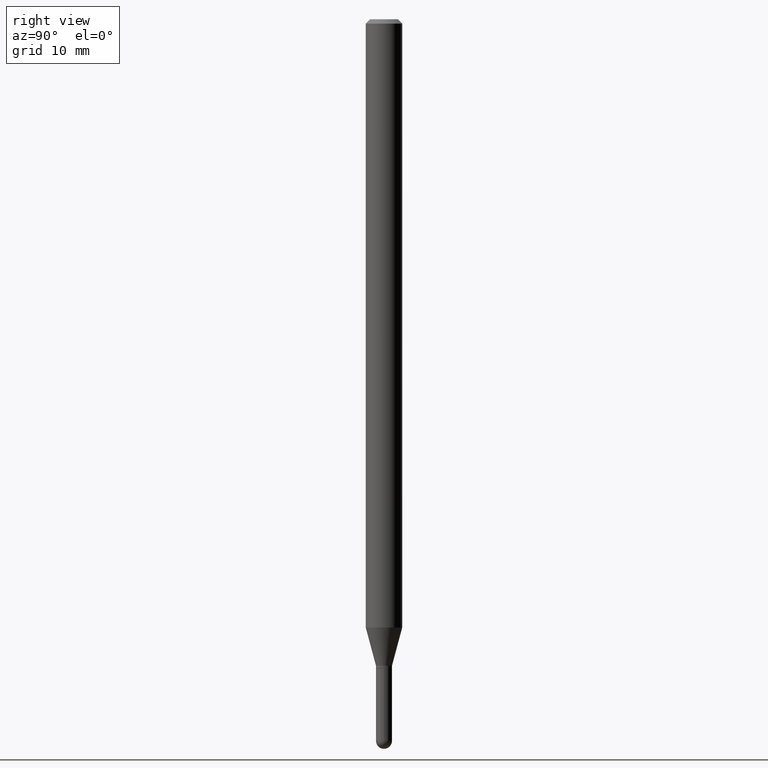
[diagram: clean part render]
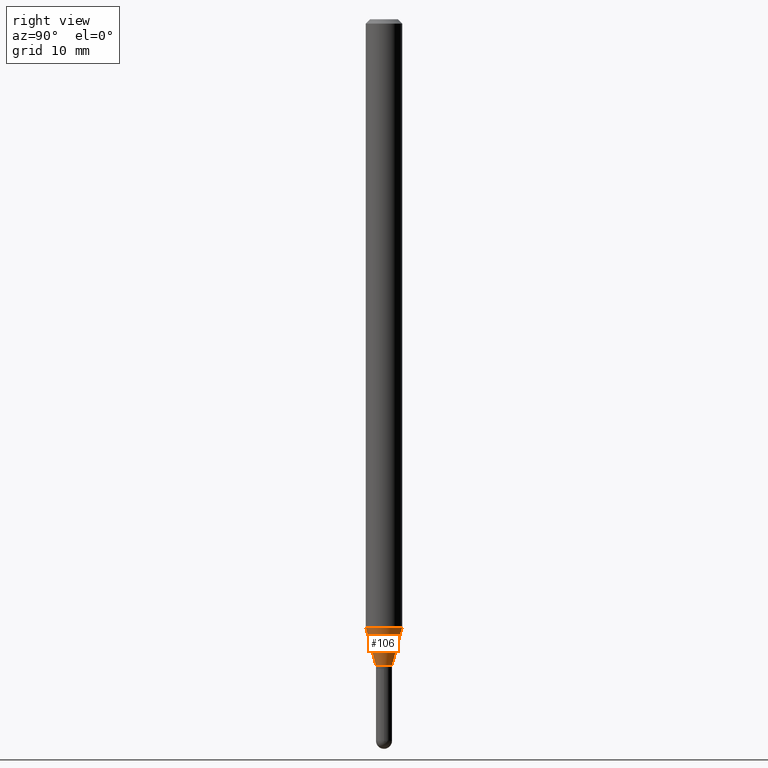
[diagram: same view with one face highlighted and labeled with its STEP entity id]
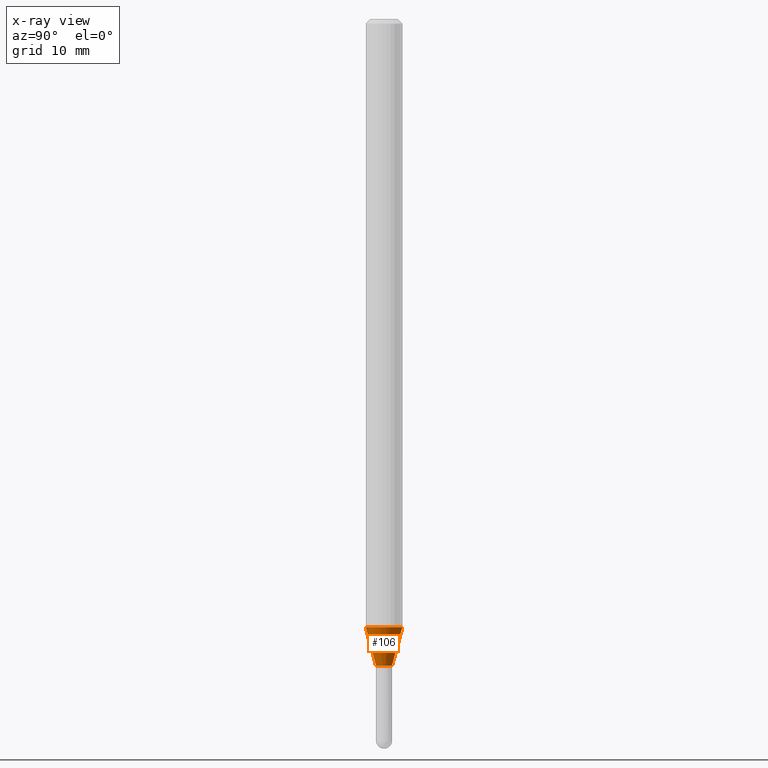
[diagram: x-ray of the same camera — body ghosted, the highlighted face saturated]
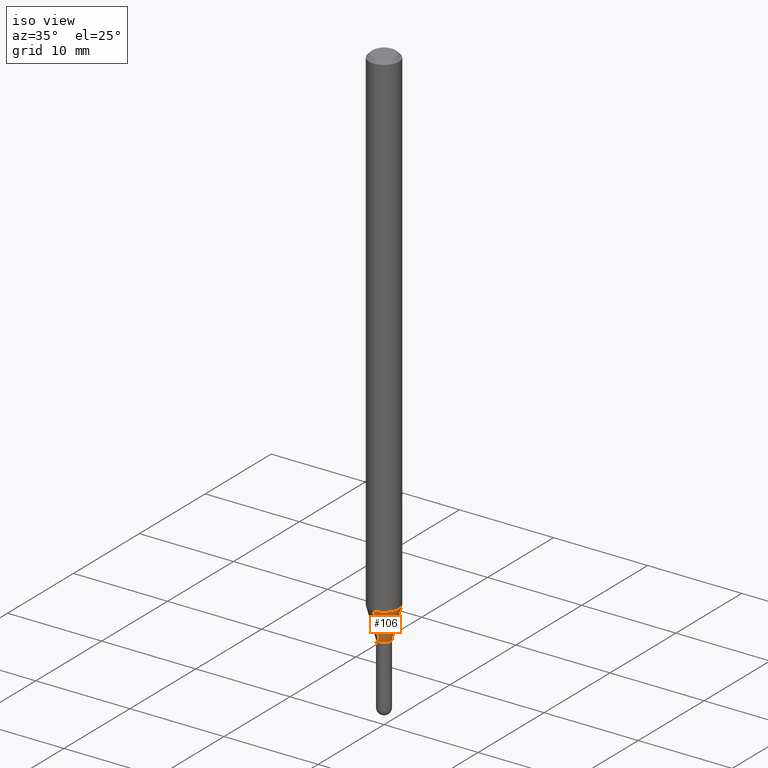
[diagram: same view with one face highlighted and labeled with its STEP entity id]
A machine part, right view. The second image highlights one B-rep face of the part: STEP entity #106.
The next image is the same camera in x-ray: the body ghosted, the highlighted face saturated — about 0% of this face is hidden behind the body in this view.
A second angle (iso view) of the same face is appended — the face is thin or edge-on in the first view.
In plain terms, the highlighted conical surface has half-angle 15 deg.
Its self-contained STEP definition (entity closure, byte-faithful):
#19 = VERTEX_POINT ( 'NONE', #500 ) ;
#24 = VERTEX_POINT ( 'NONE', #426 ) ;
#49 = CARTESIAN_POINT ( 'NONE',  ( -1.920314736363195647E-16, -0.02750000000000793476, -2.215000000000000302 ) ) ;
#64 = CARTESIAN_POINT ( 'NONE',  ( 5.416780979827812777E-29, -7.733534395540570938E-15, -2.215000000000000302 ) ) ;
#73 = VERTEX_POINT ( 'NONE', #75 ) ;
#75 = CARTESIAN_POINT ( 'NONE',  ( 3.197442310920983692E-16, 0.02749999999999246797, -2.215000000000000302 ) ) ;
#106 = ADVANCED_FACE ( 'NONE', ( #179 ), #345, .T. ) ;
#110 = VECTOR ( 'NONE', #121, 39.37007874015748854 ) ;
#117 = DIRECTION ( 'NONE',  ( -6.982962677686265922E-15, -1.000000000000000000, 0.000000000000000000 ) ) ;
#119 = CARTESIAN_POINT ( 'NONE',  ( 5.097345510727747857E-29, -7.277476600949894136E-15, -2.084378221735090797 ) ) ;
#121 = DIRECTION ( 'NONE',  ( -1.807323732225331717E-15, -0.2588190451025184080, 0.9659258262890689783 ) ) ;
#179 = FACE_OUTER_BOUND ( 'NONE', #208, .T. ) ;
#192 = CARTESIAN_POINT ( 'NONE',  ( -1.920314736363195647E-16, -0.02750000000000793476, -2.215000000000000302 ) ) ;
#200 = DIRECTION ( 'NONE',  ( 1.839019923739601893E-15, 0.2588190451025252359, 0.9659258262890670910 ) ) ;
#206 = EDGE_CURVE ( 'NONE', #73, #19, #361, .T. ) ;
#208 = EDGE_LOOP ( 'NONE', ( #332, #221, #218, #330 ) ) ;
#218 = ORIENTED_EDGE ( 'NONE', *, *, #495, .F. ) ;
#221 = ORIENTED_EDGE ( 'NONE', *, *, #206, .T. ) ;
#235 = EDGE_CURVE ( 'NONE', #248, #24, #368, .T. ) ;
#237 = DIRECTION ( 'NONE',  ( -2.445499313692014711E-29, 3.491437650356916389E-15, 1.000000000000000000 ) ) ;
#240 = CIRCLE ( 'NONE', #393, 0.06250000000000000000 ) ;
#248 = VERTEX_POINT ( 'NONE', #192 ) ;
#275 = CARTESIAN_POINT ( 'NONE',  ( 1.953992523340831175E-16, 0.02749999999999246797, -2.215000000000000302 ) ) ;
#282 = AXIS2_PLACEMENT_3D ( 'NONE', #64, #237, #366 ) ;
#317 = DIRECTION ( 'NONE',  ( -2.445499313692014711E-29, 3.491437650356916389E-15, 1.000000000000000000 ) ) ;
#330 = ORIENTED_EDGE ( 'NONE', *, *, #235, .F. ) ;
#332 = ORIENTED_EDGE ( 'NONE', *, *, #456, .T. ) ;
#345 = CONICAL_SURFACE ( 'NONE', #387, 0.02750000000000020137, 0.2617993877991505181 ) ;
#348 = CARTESIAN_POINT ( 'NONE',  ( 5.416780979827812777E-29, -7.733534395540570938E-15, -2.215000000000000302 ) ) ;
#361 = LINE ( 'NONE', #275, #363 ) ;
#363 = VECTOR ( 'NONE', #200, 39.37007874015748854 ) ;
#366 = DIRECTION ( 'NONE',  ( -6.982962677686265922E-15, -1.000000000000000000, 0.000000000000000000 ) ) ;
#368 = LINE ( 'NONE', #49, #110 ) ;
#387 = AXIS2_PLACEMENT_3D ( 'NONE', #348, #467, #117 ) ;
#393 = AXIS2_PLACEMENT_3D ( 'NONE', #119, #317, #473 ) ;
#426 = CARTESIAN_POINT ( 'NONE',  ( -4.364351673553408372E-16, -0.06250000000000729972, -2.084378221735090797 ) ) ;
#456 = EDGE_CURVE ( 'NONE', #248, #73, #501, .T. ) ;
#467 = DIRECTION ( 'NONE',  ( -2.445499313692014711E-29, 3.491437650356916389E-15, 1.000000000000000000 ) ) ;
#473 = DIRECTION ( 'NONE',  ( -6.982962677686265922E-15, -1.000000000000000000, 4.370956789862821150E-15 ) ) ;
#495 = EDGE_CURVE ( 'NONE', #24, #19, #240, .T. ) ;
#500 = CARTESIAN_POINT ( 'NONE',  ( 4.440892098501132019E-16, 0.06249999999999269334, -2.084378221735091241 ) ) ;
#501 = CIRCLE ( 'NONE', #282, 0.02750000000000020137 ) ;